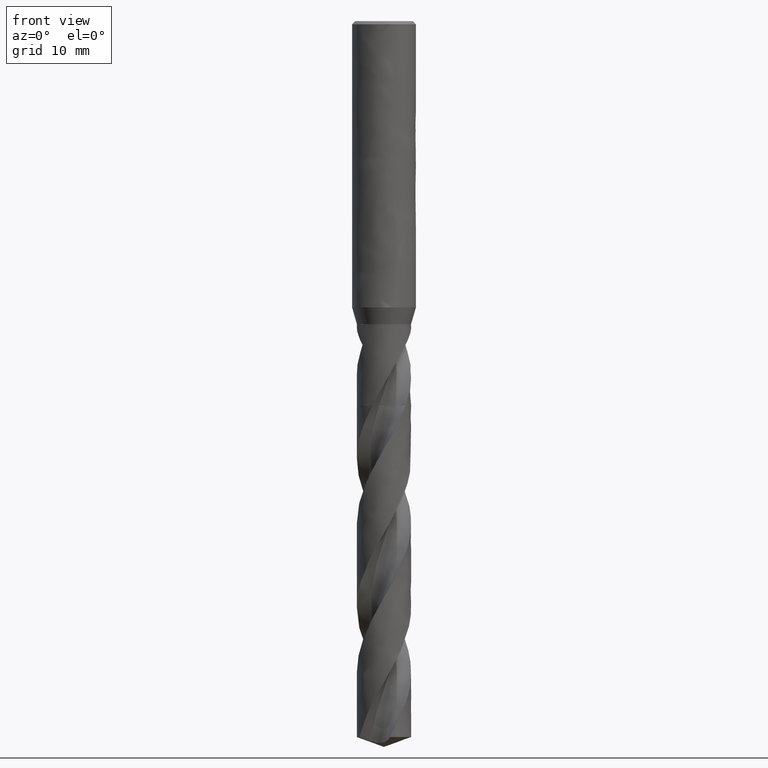
[diagram: clean part render]
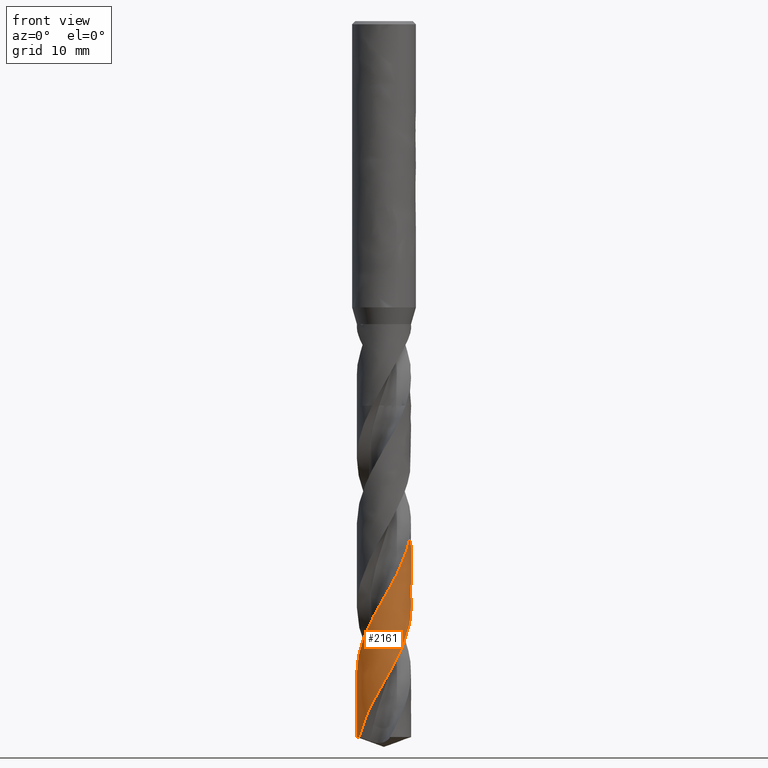
[diagram: same view with one face highlighted and labeled with its STEP entity id]
A machine part, front view. The second image highlights one B-rep face of the part: STEP entity #2161.
In plain terms, the highlighted face is a freeform B-spline surface patch.
Its self-contained STEP definition (entity closure, byte-faithful):
#1911 = EDGE_CURVE('', #1912, #1914, #1916, .T.);
#1912 = VERTEX_POINT('', #1913);
#1913 = CARTESIAN_POINT('', (-3.4, 3.15958874180017E-15, -48.2));
#1914 = VERTEX_POINT('', #1915);
#1915 = CARTESIAN_POINT('', (-2.70654430468537, 2.05781873030042, -48.2));
#1916 = CIRCLE('', #1917, 3.4);
#1917 = AXIS2_PLACEMENT_3D('', #1918, #1919, #1920);
#1918 = CARTESIAN_POINT('', (1.80721053810754E-31, 2.95139878594512E-15, -48.2));
#1919 = DIRECTION('', (3.74939945665464E-33, 6.12323399573677E-17, -1.));
#1920 = DIRECTION('', (-1., 6.12323399573677E-17, 0.));
#2107 = EDGE_CURVE('', #1912, #2108, #2110, .T.);
#2108 = VERTEX_POINT('', #2109);
#2109 = CARTESIAN_POINT('', (-3.4, 3.56620488106823E-15, -54.840545495259));
#2110 = LINE('', #2111, #2112);
#2111 = CARTESIAN_POINT('', (-3.4, 3.15958874180017E-15, -48.2));
#2112 = VECTOR('', #2113, 6.64054549525896);
#2113 = DIRECTION('', (0., 4.06616139268063E-16, -6.64054549525896));
#2161 = ADVANCED_FACE('', (#2162), #2589, .T.);
#2162 = FACE_OUTER_BOUND('', #2163, .T.);
#2163 = EDGE_LOOP('', (#2164, #2165, #2180, #2369, #2377, #2386, #2588));
#2164 = ORIENTED_EDGE('', *, *, #1911, .T.);
#2165 = ORIENTED_EDGE('', *, *, #2166, .T.);
#2166 = EDGE_CURVE('', #1914, #2167, #2169, .T.);
#2167 = VERTEX_POINT('', #2168);
#2168 = CARTESIAN_POINT('', (-2.07670650199845, 2.69207914158507, -49.7547794844051));
#2169 = B_SPLINE_CURVE_WITH_KNOTS('', 3, (#2170, #2171, #2172, #2173, #2174, #2175, #2176, #2177, #2178, #2179), .UNSPECIFIED., .F., .U., (4, 3, 3, 4), (4.06448001128583, 4.46939328573138, 5.13447242647181, 5.85900932511272), .UNSPECIFIED.);
#2170 = CARTESIAN_POINT('', (-2.70654430468537, 2.05781873030042, -48.2));
#2171 = CARTESIAN_POINT('', (-2.66573426832234, 2.11149409531968, -48.3169217330435));
#2172 = CARTESIAN_POINT('', (-2.62331715148642, 2.1639668815126, -48.433884989007));
#2173 = CARTESIAN_POINT('', (-2.57939230872634, 2.21511519286998, -48.5508108371741));
#2174 = CARTESIAN_POINT('', (-2.5072447686882, 2.29912744219539, -48.7428641669539));
#2175 = CARTESIAN_POINT('', (-2.43096554691488, 2.37963625278252, -48.9349739914612));
#2176 = CARTESIAN_POINT('', (-2.35096929213514, 2.45620507845693, -49.1270302884313));
#2177 = CARTESIAN_POINT('', (-2.26382141034099, 2.53961912061883, -49.3362563267283));
#2178 = CARTESIAN_POINT('', (-2.17221061408156, 2.61840596925262, -49.5455441645231));
#2179 = CARTESIAN_POINT('', (-2.07670650199842, 2.69207914158509, -49.7547794844052));
#2180 = ORIENTED_EDGE('', *, *, #2181, .T.);
#2181 = EDGE_CURVE('', #2167, #2182, #2184, .T.);
#2182 = VERTEX_POINT('', #2183);
#2183 = CARTESIAN_POINT('', (-3.4, 5.20795423810453E-15, -81.6523472029734));
#2184 = B_SPLINE_CURVE_WITH_KNOTS('', 3, (#2185, #2186, #2187, #2188, #2189, #2190, #2191, #2192, #2193, #2194, #2195, #2196, #2197, #2198, #2199, #2200, #2201, #2202, #2203, #2204, #2205, #2206, #2207, #2208, #2209, #2210, #2211, #2212, #2213, #2214, #2215, #2216, #2217, #2218, #2219, #2220, #2221, #2222, #2223, #2224, #2225, #2226, #2227, #2228, #2229, #2230, #2231, #2232, #2233, #2234, #2235, #2236, #2237, #2238, #2239, #2240, #2241, #2242, #2243, #2244, #2245, #2246, #2247, #2248, #2249, #2250, #2251, #2252, #2253, #2254, #2255, #2256, #2257, #2258, #2259, #2260, #2261, #2262, #2263, #2264, #2265, #2266, #2267, #2268, #2269, #2270, #2271, #2272, #2273, #2274, #2275, #2276, #2277, #2278, #2279, #2280, #2281, #2282, #2283, #2284, #2285, #2286, #2287, #2288, #2289, #2290, #2291, #2292, #2293, #2294, #2295, #2296, #2297, #2298, #2299, #2300, #2301, #2302, #2303, #2304, #2305, #2306, #2307, #2308, #2309, #2310, #2311, #2312, #2313, #2314, #2315, #2316, #2317, #2318, #2319, #2320, #2321, #2322, #2323, #2324, #2325, #2326, #2327, #2328, #2329, #2330, #2331, #2332, #2333, #2334, #2335, #2336, #2337, #2338, #2339, #2340, #2341, #2342, #2343, #2344, #2345, #2346, #2347, #2348, #2349, #2350, #2351, #2352, #2353, #2354, #2355, #2356, #2357, #2358, #2359, #2360, #2361, #2362, #2363, #2364, #2365, #2366, #2367, #2368), .UNSPECIFIED., .F., .U., (4, 3, 3, 3, 3, 3, 3, 3, 3, 3, 3, 3, 3, 3, 3, 3, 3, 3, 3, 3, 3, 3, 3, 3, 3, 3, 3, 3, 3, 3, 3, 3, 3, 3, 3, 3, 3, 3, 3, 3, 3, 3, 3, 3, 3, 3, 3, 3, 3, 3, 3, 3, 3, 3, 3, 3, 3, 3, 3, 3, 3, 4), (0., 0.664662705574033, 1.32912917288969, 1.99339885019059, 2.65746979782084, 3.32133917714323, 3.98500306582942, 4.42767326535415, 4.46659147409226, 4.50551635967254, 5.17212282784109, 5.83849504216515, 6.50464255546535, 7.17057340613799, 7.83629424632743, 8.50181047376977, 9.16712634360661, 9.83224505311552, 10.4971688032183, 11.1618988394438, 11.8264354741008, 12.4907780906116, 13.1549251302213, 13.8188740605795, 14.4826213249793, 15.1461622770032, 15.2045356421738, 15.8711376444633, 16.5375078921573, 17.2036559132106, 17.869589676359, 18.5353157723578, 19.2008395564398, 19.8661652590164, 20.5312960698044, 21.1962341991507, 21.8609809192166, 22.5255365867713, 23.1899006485605, 23.8540716295034, 24.5180471038934, 25.1818236710355, 25.8453968919637, 25.9329476650287, 25.9913296348911, 26.6579072634554, 27.3242564632162, 27.9903865325873, 28.6563052503871, 29.3220190515047, 29.9875331650631, 30.6528517218298, 31.3179778358576, 31.982913663985, 32.6476604457573, 33.312218525448, 33.9765873571079, 34.6407654928757, 35.3047505542685, 35.9685391915286, 36.6321270253332, 36.7489930226745), .UNSPECIFIED.);
#2185 = CARTESIAN_POINT('', (-2.07670650199845, 2.69207914158507, -49.7547794844051));
#2186 = CARTESIAN_POINT('', (-1.98909464724033, 2.75966411916534, -49.9467240410941));
#2187 = CARTESIAN_POINT('', (-1.89816148922431, 2.82298101932344, -50.1387312507681));
#2188 = CARTESIAN_POINT('', (-1.80439676530084, 2.88169261257545, -50.3306880284463));
#2189 = CARTESIAN_POINT('', (-1.7106597249317, 2.94038687153036, -50.5225881318694));
#2190 = CARTESIAN_POINT('', (-1.61403661911898, 2.99451375232613, -50.714551145815));
#2191 = CARTESIAN_POINT('', (-1.51504646655628, 3.04378616268873, -50.9064638284024));
#2192 = CARTESIAN_POINT('', (-1.41608563115937, 3.09304398041371, -51.0983196736601));
#2193 = CARTESIAN_POINT('', (-1.31469994102501, 3.13747970088758, -51.2902383615324));
#2194 = CARTESIAN_POINT('', (-1.21143276525714, 3.17685861430148, -51.4821066405582));
#2195 = CARTESIAN_POINT('', (-1.10819648394753, 3.21622574671925, -51.6739175183188));
#2196 = CARTESIAN_POINT('', (-1.00301865623766, 3.25056245974967, -51.8657912856637));
#2197 = CARTESIAN_POINT('', (-0.896461610702531, 3.27968848833799, -52.0576146007905));
#2198 = CARTESIAN_POINT('', (-0.789936908885242, 3.30880567617772, -52.2493796909622));
#2199 = CARTESIAN_POINT('', (-0.681971243112837, 3.33273248029514, -52.4412077230086));
#2200 = CARTESIAN_POINT('', (-0.573140394344877, 3.35134451949817, -52.6329852266077));
#2201 = CARTESIAN_POINT('', (-0.464343232505477, 3.36995079762847, -52.8247033684069));
#2202 = CARTESIAN_POINT('', (-0.354618106542504, 3.38325645761846, -53.0164844919234));
#2203 = CARTESIAN_POINT('', (-0.244548778767998, 3.39119387455267, -53.2082150382659));
#2204 = CARTESIAN_POINT('', (-0.17113147805581, 3.39648820802158, -53.3361011575069));
#2205 = CARTESIAN_POINT('', (-0.0975377041327914, 3.39939746023729, -53.4640070173651));
#2206 = CARTESIAN_POINT('', (-0.0239413196041546, 3.39991570678093, -53.5918987415309));
#2207 = CARTESIAN_POINT('', (-0.0174709507866222, 3.39996126943047, -53.6031425903879));
#2208 = CARTESIAN_POINT('', (-0.0110004792572525, 3.39998836120316, -53.6143864701579));
#2209 = CARTESIAN_POINT('', (-0.00453002436363119, 3.39999698218679, -53.6256303584915));
#2210 = CARTESIAN_POINT('', (0.00194154060693125, 3.40000560464944, -53.6368761758364));
#2211 = CARTESIAN_POINT('', (0.0084131020578022, 3.39999575000227, -53.648122024552));
#2212 = CARTESIAN_POINT('', (0.0148845406215845, 3.39996741902779, -53.659367882258));
#2213 = CARTESIAN_POINT('', (0.125710885790287, 3.39948223813242, -53.8519583388545));
#2214 = CARTESIAN_POINT('', (0.236534960221085, 3.39357172820682, -54.0446124834251));
#2215 = CARTESIAN_POINT('', (0.346762681355106, 3.38227078200718, -54.2372155370473));
#2216 = CARTESIAN_POINT('', (0.456951667090241, 3.37097380710127, -54.4297509075493));
#2217 = CARTESIAN_POINT('', (0.566609631660887, 3.35428351623566, -54.6223496363976));
#2218 = CARTESIAN_POINT('', (0.675148938717148, 3.33229259077762, -54.8148976073942));
#2219 = CARTESIAN_POINT('', (0.783651646268058, 3.31030908066998, -55.0073806511246));
#2220 = CARTESIAN_POINT('', (0.891101069808709, 3.28301540727713, -55.1999267194097));
#2221 = CARTESIAN_POINT('', (0.996921655927415, 3.25056106110067, -55.3924223124865));
#2222 = CARTESIAN_POINT('', (1.10270782419455, 3.21811727061012, -55.5848552969065));
#2223 = CARTESIAN_POINT('', (1.20692963568786, 3.18049671555123, -55.7773510880565));
#2224 = CARTESIAN_POINT('', (1.30902943694291, 3.13790406692386, -55.9697965694206));
#2225 = CARTESIAN_POINT('', (1.41109703961672, 3.09532485047599, -56.1621813604464));
#2226 = CARTESIAN_POINT('', (1.51110521500705, 3.04775114180278, -56.3546288496268));
#2227 = CARTESIAN_POINT('', (1.60851977281426, 2.99544055866006, -56.5470260944757));
#2228 = CARTESIAN_POINT('', (1.70590438975274, 2.94314605344592, -56.7393642050352));
#2229 = CARTESIAN_POINT('', (1.80075519839686, 2.88608634948238, -56.9317649865053));
#2230 = CARTESIAN_POINT('', (1.89256667120335, 2.82456924061888, -57.1241155166413));
#2231 = CARTESIAN_POINT('', (1.98435050362169, 2.76307065184568, -57.3164081385101));
#2232 = CARTESIAN_POINT('', (2.07315131171704, 2.69708087020521, -57.5087634586621));
#2233 = CARTESIAN_POINT('', (2.15849702648716, 2.626954622114, -57.7010684742978));
#2234 = CARTESIAN_POINT('', (2.24381744982823, 2.55684915530083, -57.8933165020851));
#2235 = CARTESIAN_POINT('', (2.32573501601239, 2.48256847392989, -58.0856272846934));
#2236 = CARTESIAN_POINT('', (2.40381547705492, 2.40451058477006, -58.2778876884368));
#2237 = CARTESIAN_POINT('', (2.48187305117502, 2.3264755759164, -58.4700917368657));
#2238 = CARTESIAN_POINT('', (2.55614123716375, 2.24462016152567, -58.6623586016468));
#2239 = CARTESIAN_POINT('', (2.62622751750303, 2.15938163053914, -58.8545750157748));
#2240 = CARTESIAN_POINT('', (2.69629337943327, 2.07416793230423, -59.0467354310204));
#2241 = CARTESIAN_POINT('', (2.76222020455321, 1.98552395845418, -59.2389587062707));
#2242 = CARTESIAN_POINT('', (2.82366065126221, 1.89392199588934, -59.4311314840639));
#2243 = CARTESIAN_POINT('', (2.88508322202441, 1.80234668469013, -59.6232483496601));
#2244 = CARTESIAN_POINT('', (2.94205719710296, 1.70776270810336, -59.8154280794717));
#2245 = CARTESIAN_POINT('', (2.99428338885606, 1.61067283680476, -60.007557311118));
#2246 = CARTESIAN_POINT('', (3.04649433264783, 1.51361131186942, -60.1996304487051));
#2247 = CARTESIAN_POINT('', (3.0939900158764, 1.41399008118131, -60.3917663950288));
#2248 = CARTESIAN_POINT('', (3.1365219183513, 1.31233770642388, -60.5838519083684));
#2249 = CARTESIAN_POINT('', (3.17904129979041, 1.21071525727403, -60.7758808733421));
#2250 = CARTESIAN_POINT('', (3.21662402481335, 1.10700503335396, -60.9679725129555));
#2251 = CARTESIAN_POINT('', (3.24907429741722, 1.0017565621761, -61.1600138691283));
#2252 = CARTESIAN_POINT('', (3.28151489038866, 0.896539485696418, -61.3519979410447));
#2253 = CARTESIAN_POINT('', (3.30884462492354, 0.789724956823522, -61.5440444572751));
#2254 = CARTESIAN_POINT('', (3.33092204056549, 0.681878551998201, -61.7360409411223));
#2255 = CARTESIAN_POINT('', (3.35299275047605, 0.574064904132928, -61.927979108504));
#2256 = CARTESIAN_POINT('', (3.36982705092419, 0.465157794375057, -62.1199793841114));
#2257 = CARTESIAN_POINT('', (3.38133900033719, 0.355733839828294, -62.3119299824221));
#2258 = CARTESIAN_POINT('', (3.39284737149419, 0.246343897498627, -62.5038209167823));
#2259 = CARTESIAN_POINT('', (3.39904341329351, 0.136373469575013, -62.6957735940924));
#2260 = CARTESIAN_POINT('', (3.39989746744948, 0.0264047501649714, -62.8876769138188));
#2261 = CARTESIAN_POINT('', (3.39997260074001, 0.0167305255434322, -62.9045591311494));
#2262 = CARTESIAN_POINT('', (3.40000644198631, 0.00705603893328164, -62.9214414326125));
#2263 = CARTESIAN_POINT('', (3.39999899182512, -0.00261831780677393, -62.9383237397771));
#2264 = CARTESIAN_POINT('', (3.39991391377027, -0.113095854178605, -63.131113374678));
#2265 = CARTESIAN_POINT('', (3.39443773474542, -0.223591010036821, -63.3239655502825));
#2266 = CARTESIAN_POINT('', (3.38360286691342, -0.333514076187647, -63.5167676814256));
#2267 = CARTESIAN_POINT('', (3.37277176599241, -0.443398925867995, -63.7095027818971));
#2268 = CARTESIAN_POINT('', (3.35657926225638, -0.55277739826619, -63.9023001662072));
#2269 = CARTESIAN_POINT('', (3.33511490104433, -0.661066257522128, -64.0950477110657));
#2270 = CARTESIAN_POINT('', (3.31365769794431, -0.769319003717058, -64.2877309768849));
#2271 = CARTESIAN_POINT('', (3.28691937967178, -0.876547363656058, -64.4804763919803));
#2272 = CARTESIAN_POINT('', (3.25504555536207, -0.982180448043342, -64.6731720596977));
#2273 = CARTESIAN_POINT('', (3.22318198285616, -1.08777955691373, -64.8658057493431));
#2274 = CARTESIAN_POINT('', (3.18616729900695, -1.19184715314529, -65.0585015478639));
#2275 = CARTESIAN_POINT('', (3.14420150567031, -1.29383031798644, -65.2511476059914));
#2276 = CARTESIAN_POINT('', (3.10224879909571, -1.39578168003529, -65.4437335886879));
#2277 = CARTESIAN_POINT('', (3.05532334595114, -1.49571006777665, -65.636381706676));
#2278 = CARTESIAN_POINT('', (3.0036773237077, -1.59308585300486, -65.828980033204));
#2279 = CARTESIAN_POINT('', (2.95204699651637, -1.69043204606013, -66.0215198297496));
#2280 = CARTESIAN_POINT('', (2.89566882590617, -1.78528408814774, -66.2141218283221));
#2281 = CARTESIAN_POINT('', (2.83484446063175, -1.87714061381281, -66.4066739524957));
#2282 = CARTESIAN_POINT('', (2.77403819866501, -1.96896979999081, -66.5991687669));
#2283 = CARTESIAN_POINT('', (2.70875326464868, -2.05785835497363, -66.791725864777));
#2284 = CARTESIAN_POINT('', (2.63933764711814, -2.14333776724642, -66.9842329987262));
#2285 = CARTESIAN_POINT('', (2.56994236328853, -2.22879214030085, -67.1766837421595));
#2286 = CARTESIAN_POINT('', (2.49637915377616, -2.31088825650115, -67.3691968405353));
#2287 = CARTESIAN_POINT('', (2.41903884780751, -2.3891946452305, -67.5616599032169));
#2288 = CARTESIAN_POINT('', (2.34172094651687, -2.46747834941776, -67.7540672113615));
#2289 = CARTESIAN_POINT('', (2.26058435359911, -2.5420188891773, -67.9465369122028));
#2290 = CARTESIAN_POINT('', (2.17605892988605, -2.61242560346954, -68.1389565467452));
#2291 = CARTESIAN_POINT('', (2.09155783768566, -2.68281205046483, -68.3313207913165));
#2292 = CARTESIAN_POINT('', (2.00362232721517, -2.74910667461949, -68.5237474098512));
#2293 = CARTESIAN_POINT('', (1.91271722613122, -2.81096296895937, -68.7161239950705));
#2294 = CARTESIAN_POINT('', (1.8218382517619, -2.87280148539976, -68.9084452900136));
#2295 = CARTESIAN_POINT('', (1.72794039891952, -2.93023893444039, -69.1008288619104));
#2296 = CARTESIAN_POINT('', (1.63151919157141, -2.98297588450429, -69.2931625185024));
#2297 = CARTESIAN_POINT('', (1.53512578454184, -3.0356976293654, -69.4854407211433));
#2298 = CARTESIAN_POINT('', (1.43615624766711, -3.08375124469308, -69.6777810046573));
#2299 = CARTESIAN_POINT('', (1.33513236980607, -3.12688687916529, -69.8700715963444));
#2300 = CARTESIAN_POINT('', (1.23413785201573, -3.17000997734107, -70.0623063035665));
#2301 = CARTESIAN_POINT('', (1.13103286182832, -3.20824241345102, -70.2546027767196));
#2302 = CARTESIAN_POINT('', (1.0263608998404, -3.24138601577764, -70.4468499064229));
#2303 = CARTESIAN_POINT('', (0.921719749277653, -3.27451986189443, -70.6390404459187));
#2304 = CARTESIAN_POINT('', (0.815452290470956, -3.3025869275222, -70.8312923547396));
#2305 = CARTESIAN_POINT('', (0.708118813869284, -3.32544248866891, -71.0234953041096));
#2306 = CARTESIAN_POINT('', (0.600817491175791, -3.3482912029712, -71.2156406752088));
#2307 = CARTESIAN_POINT('', (0.49238818013508, -3.36594485554387, -71.4078470903655));
#2308 = CARTESIAN_POINT('', (0.383402377137043, -3.37831357591416, -71.60000481395));
#2309 = CARTESIAN_POINT('', (0.274449961654481, -3.39067850715933, -71.7921036705188));
#2310 = CARTESIAN_POINT('', (0.164877459601534, -3.39776900563465, -71.9842633984359));
#2311 = CARTESIAN_POINT('', (0.0552616884726825, -3.39955087412848, -72.176374560849));
#2312 = CARTESIAN_POINT('', (0.0407991616560998, -3.39978597096364, -72.2017213956115));
#2313 = CARTESIAN_POINT('', (0.026335254130114, -3.39992877330793, -72.2270684666549));
#2314 = CARTESIAN_POINT('', (0.0118712772620644, -3.39997927534509, -72.2524155139706));
#2315 = CARTESIAN_POINT('', (0.00222618296945677, -3.40001295189995, -72.2693178267736));
#2316 = CARTESIAN_POINT('', (-0.00741899588045784, -3.40000558594778, -72.2862202229248));
#2317 = CARTESIAN_POINT('', (-0.0170638718718545, -3.39995717977105, -72.3031226245312));
#2318 = CARTESIAN_POINT('', (-0.127184489269404, -3.39940450101471, -72.4961062255714));
#2319 = CARTESIAN_POINT('', (-0.237299501890257, -3.39349539276194, -72.6891516661982));
#2320 = CARTESIAN_POINT('', (-0.346825289970141, -3.38226436255907, -72.8821477589211));
#2321 = CARTESIAN_POINT('', (-0.456313544770123, -3.3710371811064, -73.0750777140111));
#2322 = CARTESIAN_POINT('', (-0.56527741365712, -3.35448511287468, -73.2680692303429));
#2323 = CARTESIAN_POINT('', (-0.673139795521811, -3.33269902866835, -73.4610116264796));
#2324 = CARTESIAN_POINT('', (-0.780966706606626, -3.3109201088634, -73.6538905730879));
#2325 = CARTESIAN_POINT('', (-0.887756529675193, -3.28389776401626, -73.8468309379652));
#2326 = CARTESIAN_POINT('', (-0.992944511332081, -3.25177815931782, -74.0397222847272));
#2327 = CARTESIAN_POINT('', (-1.09809911865831, -3.21966874561545, -74.2325524303949));
#2328 = CARTESIAN_POINT('', (-1.20171483341204, -3.18244641663211, -74.4254439572529));
#2329 = CARTESIAN_POINT('', (-1.30324482368754, -3.14031096064258, -74.6182864717348));
#2330 = CARTESIAN_POINT('', (-1.40474357112786, -3.0981884705866, -74.8110696446675));
#2331 = CARTESIAN_POINT('', (-1.50421722663374, -3.05113127779308, -75.0039142385989));
#2332 = CARTESIAN_POINT('', (-1.60114214209874, -2.99939057823344, -75.1967097583541));
#2333 = CARTESIAN_POINT('', (-1.6980379839592, -2.94766539881773, -75.3894474471515));
#2334 = CARTESIAN_POINT('', (-1.79244268798364, -2.89122962665708, -75.5822466451634));
#2335 = CARTESIAN_POINT('', (-1.88386069620003, -2.83038316793199, -75.7749966679202));
#2336 = CARTESIAN_POINT('', (-1.97525184185705, -2.76955458852458, -75.967690052395));
#2337 = CARTESIAN_POINT('', (-2.06371029962134, -2.70428317763602, -76.1604450548079));
#2338 = CARTESIAN_POINT('', (-2.14877311899824, -2.63491443562605, -76.3531507692773));
#2339 = CARTESIAN_POINT('', (-2.23381133403819, -2.56556575845657, -76.5458007438082));
#2340 = CARTESIAN_POINT('', (-2.3155038995066, -2.49208299936123, -76.7385124382276));
#2341 = CARTESIAN_POINT('', (-2.39342457869924, -2.41485378151108, -76.9311747474463));
#2342 = CARTESIAN_POINT('', (-2.47132296556823, -2.33764665816442, -77.1237819379136));
#2343 = CARTESIAN_POINT('', (-2.54549513128178, -2.25665213945219, -77.3164509168198));
#2344 = CARTESIAN_POINT('', (-2.61555523636116, -2.17229620575641, -77.5090704550773));
#2345 = CARTESIAN_POINT('', (-2.68559542281539, -2.08796425509948, -77.7016352301229));
#2346 = CARTESIAN_POINT('', (-2.75156468000136, -2.00022612560461, -77.8942618028115));
#2347 = CARTESIAN_POINT('', (-2.8131208235309, -1.90954215251112, -78.0868389469025));
#2348 = CARTESIAN_POINT('', (-2.87465949307977, -1.81888392193336, -78.2793614240001));
#2349 = CARTESIAN_POINT('', (-2.93182150005648, -1.72523153240763, -78.4719456233566));
#2350 = CARTESIAN_POINT('', (-2.98431115268691, -1.62907548749237, -78.6644804986445));
#2351 = CARTESIAN_POINT('', (-3.03678585769471, -1.53294682519828, -78.8569605452468));
#2352 = CARTESIAN_POINT('', (-3.08461986139926, -1.43426282038027, -79.0495021296164));
#2353 = CARTESIAN_POINT('', (-3.12756639357987, -1.33353982083393, -79.2419946111739));
#2354 = CARTESIAN_POINT('', (-3.17050059868119, -1.2328457321295, -79.4344318410042));
#2355 = CARTESIAN_POINT('', (-3.20857406141651, -1.13005766881335, -79.6269302912208));
#2356 = CARTESIAN_POINT('', (-3.24159097025768, -1.02571340126954, -79.8193800001158));
#2357 = CARTESIAN_POINT('', (-3.27459828119326, -0.921399466257249, -80.0117737645205));
#2358 = CARTESIAN_POINT('', (-3.30257065580163, -0.815471113852259, -80.2042283207478));
#2359 = CARTESIAN_POINT('', (-3.32536495545271, -0.708482824807399, -80.396634573519));
#2360 = CARTESIAN_POINT('', (-3.34815251195429, -0.60152618569431, -80.5889839074925));
#2361 = CARTESIAN_POINT('', (-3.36577817075002, -0.493448597563809, -80.7813936474321));
#2362 = CARTESIAN_POINT('', (-3.37815286563757, -0.384815821380769, -80.973755412154));
#2363 = CARTESIAN_POINT('', (-3.39052381704208, -0.276215907822393, -81.1660589852998));
#2364 = CARTESIAN_POINT('', (-3.39765417364119, -0.166998009866585, -81.3584227508713));
#2365 = CARTESIAN_POINT('', (-3.39950979781438, -0.057733305505673, -81.5507387069124));
#2366 = CARTESIAN_POINT('', (-3.39983659610489, -0.0384904442010528, -81.5846079173808));
#2367 = CARTESIAN_POINT('', (-3.4, -0.0192449829701771, -81.6184776213914));
#2368 = CARTESIAN_POINT('', (-3.4, 4.87754193197368E-15, -81.6523472029734));
#2369 = ORIENTED_EDGE('', *, *, #2370, .T.);
#2370 = EDGE_CURVE('', #2182, #2371, #2373, .T.);
#2371 = VERTEX_POINT('', #2372);
#2372 = CARTESIAN_POINT('', (-3.4, 5.70455794497107E-15, -89.7625012034949));
#2373 = LINE('', #2374, #2375);
#2374 = CARTESIAN_POINT('', (-3.4, 5.20795423810453E-15, -81.6523472029734));
#2375 = VECTOR('', #2376, 8.11015400052153);
#2376 = DIRECTION('', (0., 4.9660370686654E-16, -8.11015400052153));
#2377 = ORIENTED_EDGE('', *, *, #2378, .F.);
#2378 = EDGE_CURVE('', #2379, #2371, #2381, .T.);
#2379 = VERTEX_POINT('', #2380);
#2380 = CARTESIAN_POINT('', (-3.10641837743046, -1.38208714065442, -89.7625012034949));
#2381 = CIRCLE('', #2382, 3.39999999999999);
#2382 = AXIS2_PLACEMENT_3D('', #2383, #2384, #2385);
#2383 = CARTESIAN_POINT('', (3.36555473240346E-31, 5.49636798911602E-15, -89.7625012034949));
#2384 = DIRECTION('', (3.74939945665464E-33, 6.12323399573677E-17, -1.));
#2385 = DIRECTION('', (-1., 6.12323399573677E-17, 0.));
#2386 = ORIENTED_EDGE('', *, *, #2387, .T.);
#2387 = EDGE_CURVE('', #2379, #2108, #2388, .T.);
#2388 = B_SPLINE_CURVE_WITH_KNOTS('', 3, (#2389, #2390, #2391, #2392, #2393, #2394, #2395, #2396, #2397, #2398, #2399, #2400, #2401, #2402, #2403, #2404, #2405, #2406, #2407, #2408, #2409, #2410, #2411, #2412, #2413, #2414, #2415, #2416, #2417, #2418, #2419, #2420, #2421, #2422, #2423, #2424, #2425, #2426, #2427, #2428, #2429, #2430, #2431, #2432, #2433, #2434, #2435, #2436, #2437, #2438, #2439, #2440, #2441, #2442, #2443, #2444, #2445, #2446, #2447, #2448, #2449, #2450, #2451, #2452, #2453, #2454, #2455, #2456, #2457, #2458, #2459, #2460, #2461, #2462, #2463, #2464, #2465, #2466, #2467, #2468, #2469, #2470, #2471, #2472, #2473, #2474, #2475, #2476, #2477, #2478, #2479, #2480, #2481, #2482, #2483, #2484, #2485, #2486, #2487, #2488, #2489, #2490, #2491, #2492, #2493, #2494, #2495, #2496, #2497, #2498, #2499, #2500, #2501, #2502, #2503, #2504, #2505, #2506, #2507, #2508, #2509, #2510, #2511, #2512, #2513, #2514, #2515, #2516, #2517, #2518, #2519, #2520, #2521, #2522, #2523, #2524, #2525, #2526, #2527, #2528, #2529, #2530, #2531, #2532, #2533, #2534, #2535, #2536, #2537, #2538, #2539, #2540, #2541, #2542, #2543, #2544, #2545, #2546, #2547, #2548, #2549, #2550, #2551, #2552, #2553, #2554, #2555, #2556, #2557, #2558, #2559, #2560, #2561, #2562, #2563, #2564, #2565, #2566, #2567, #2568, #2569, #2570, #2571, #2572, #2573, #2574, #2575, #2576, #2577, #2578, #2579, #2580, #2581, #2582, #2583, #2584, #2585, #2586, #2587), .UNSPECIFIED., .F., .U., (4, 3, 3, 3, 3, 3, 3, 3, 3, 3, 3, 3, 3, 3, 3, 3, 3, 3, 3, 3, 3, 3, 3, 3, 3, 3, 3, 3, 3, 3, 3, 3, 3, 3, 3, 3, 3, 3, 3, 3, 3, 3, 3, 3, 3, 3, 3, 3, 3, 3, 3, 3, 3, 3, 3, 3, 3, 3, 3, 3, 3, 3, 3, 3, 3, 3, 4), (0., 0.665658684143706, 1.33112080664724, 1.99638968701816, 2.66146776314738, 3.32635658042333, 3.99105676015281, 4.65556804558426, 5.3198892849395, 5.98401841330459, 6.64795241296074, 7.31168725522058, 7.75439158018634, 7.8856975406057, 7.94407468603058, 8.61064976076176, 9.27699881915352, 9.94313059406263, 10.6090523876881, 11.2747702067578, 11.9402888753746, 12.6056121356499, 13.2707427233142, 13.9356824216931, 14.6004320964094, 15.2649917123102, 15.9293603333777, 16.5935361056868, 17.2575162227936, 17.9212968722078, 18.5848731614618, 18.6724239627892, 18.7308027443274, 19.3973840671119, 20.06373782596, 20.7298728324584, 21.395796433367, 22.0615146678949, 22.7270323826502, 23.3923533333696, 24.057480261298, 24.7224149476488, 25.3871582485295, 26.051710111847, 26.7160695769481, 27.380234757049, 28.044202803811, 28.7079698526785, 29.3715309471411, 29.459081461662, 29.5174741697898, 30.1840551037833, 30.8504072042736, 31.5165393164535, 32.1824587967146, 32.8481716790447, 33.5136827983592, 34.1789958924928, 34.8441136786269, 35.5090379075943, 36.1737693984404, 36.8383080547462, 37.5026528634449, 38.1668018761567, 38.830752172347, 39.4944998028693, 40.2097556515464), .UNSPECIFIED.);
#2389 = CARTESIAN_POINT('', (-3.10641837743046, -1.38208714065442, -89.7625012034949));
#2390 = CARTESIAN_POINT('', (-3.06184587137246, -1.48226957334902, -89.5696015661691));
#2391 = CARTESIAN_POINT('', (-3.01240621582055, -1.58032740417758, -89.3766503032227));
#2392 = CARTESIAN_POINT('', (-2.95835715129782, -1.67574549540348, -89.1837576266164));
#2393 = CARTESIAN_POINT('', (-2.90432404686548, -1.77113541072337, -88.9909219090821));
#2394 = CARTESIAN_POINT('', (-2.84565354606718, -1.8639413737615, -88.7980345843537));
#2395 = CARTESIAN_POINT('', (-2.78265161740104, -1.95367601617447, -88.6052059630038));
#2396 = CARTESIAN_POINT('', (-2.71966798373119, -2.04338460073518, -88.4124333367478));
#2397 = CARTESIAN_POINT('', (-2.65232006248501, -2.13007407568269, -88.2196088719757));
#2398 = CARTESIAN_POINT('', (-2.58095880687818, -2.21328977705088, -88.0268432839373));
#2399 = CARTESIAN_POINT('', (-2.50961801822941, -2.29648161151461, -87.8341329825551));
#2400 = CARTESIAN_POINT('', (-2.43422647377551, -2.3762480010103, -87.6413707543139));
#2401 = CARTESIAN_POINT('', (-2.35517697513864, -2.45217075583589, -87.4486674544712));
#2402 = CARTESIAN_POINT('', (-2.27614997133058, -2.52807190559881, -87.2560189915069));
#2403 = CARTESIAN_POINT('', (-2.19342322425954, -2.60017374395295, -87.063318596086));
#2404 = CARTESIAN_POINT('', (-2.10742782456865, -2.66809819238982, -86.8706771086403));
#2405 = CARTESIAN_POINT('', (-2.02145682288353, -2.73600336978323, -86.6780902760732));
#2406 = CARTESIAN_POINT('', (-1.93217124924991, -2.79977125253461, -86.4854515747478));
#2407 = CARTESIAN_POINT('', (-1.84003660461929, -2.85906720691576, -86.2928716916379));
#2408 = CARTESIAN_POINT('', (-1.74792814278439, -2.91834631059035, -86.1003465358214));
#2409 = CARTESIAN_POINT('', (-1.65292081235727, -2.97318910223052, -85.9077696300079));
#2410 = CARTESIAN_POINT('', (-1.55551031352072, -3.02330740490124, -85.7152514050264));
#2411 = CARTESIAN_POINT('', (-1.45812767347828, -3.07341137405049, -85.5227882390545));
#2412 = CARTESIAN_POINT('', (-1.35828850334831, -3.11882169907105, -85.3302734791632));
#2413 = CARTESIAN_POINT('', (-1.25651418325136, -3.15929930637921, -85.1378172305313));
#2414 = CARTESIAN_POINT('', (-1.15476929464667, -3.19976520821605, -84.9454166371431));
#2415 = CARTESIAN_POINT('', (-1.05103271642995, -3.23532415680738, -84.7529646239647));
#2416 = CARTESIAN_POINT('', (-0.945846695198553, -3.26578842382389, -84.560570940915));
#2417 = CARTESIAN_POINT('', (-0.84069157881931, -3.29624374009146, -84.3682337853226));
#2418 = CARTESIAN_POINT('', (-0.734027781434464, -3.32162475288345, -84.1758453815945));
#2419 = CARTESIAN_POINT('', (-0.626413337630431, -3.34179687151078, -83.9835151361158));
#2420 = CARTESIAN_POINT('', (-0.518831174463396, -3.36196293919535, -83.791242583105));
#2421 = CARTESIAN_POINT('', (-0.410237011879745, -3.37693483001121, -83.5989189285722));
#2422 = CARTESIAN_POINT('', (-0.301199360641982, -3.38663239002259, -83.4066532927939));
#2423 = CARTESIAN_POINT('', (-0.228472366798002, -3.3931005629816, -83.2784140877952));
#2424 = CARTESIAN_POINT('', (-0.155524721809614, -3.3972259183913, -83.1501602917478));
#2425 = CARTESIAN_POINT('', (-0.082526513729763, -3.3989982898689, -83.021924310408));
#2426 = CARTESIAN_POINT('', (-0.0608752686881462, -3.39952397467919, -82.9838895595809));
#2427 = CARTESIAN_POINT('', (-0.0392185378457906, -3.39984278715044, -82.9458545093792));
#2428 = CARTESIAN_POINT('', (-0.0175607785796062, -3.39995464955867, -82.9078199990337));
#2429 = CARTESIAN_POINT('', (-0.00793198367782913, -3.40000438232063, -82.8909102857617));
#2430 = CARTESIAN_POINT('', (0.00169708572229088, -3.40001321140795, -82.8740005590203));
#2431 = CARTESIAN_POINT('', (0.0113260430764361, -3.39998113535181, -82.857090895542));
#2432 = CARTESIAN_POINT('', (0.121273573419161, -3.3996148773006, -82.6640091661307));
#2433 = CARTESIAN_POINT('', (0.231241547402821, -3.3939090529141, -82.4708756370917));
#2434 = CARTESIAN_POINT('', (0.340648757853118, -3.38289202070855, -82.277800949189));
#2435 = CARTESIAN_POINT('', (0.450018871480943, -3.37187872406015, -82.0847917273317));
#2436 = CARTESIAN_POINT('', (0.558891998536599, -3.35555145656979, -81.89173057399));
#2437 = CARTESIAN_POINT('', (0.666693413201661, -3.33399458499765, -81.6987284225404));
#2438 = CARTESIAN_POINT('', (0.774459675919678, -3.31244474270254, -81.5057892053429));
#2439 = CARTESIAN_POINT('', (0.881216656263537, -3.28565638639554, -81.3127978605745));
#2440 = CARTESIAN_POINT('', (0.986401595141154, -3.25376887518198, -81.1198656966467));
#2441 = CARTESIAN_POINT('', (1.09155337711302, -3.2218914157041, -80.9269943497298));
#2442 = CARTESIAN_POINT('', (1.19519368717038, -3.18489997148421, -80.7340707315283));
#2443 = CARTESIAN_POINT('', (1.29677674760943, -3.14298744300061, -80.5412064063562));
#2444 = CARTESIAN_POINT('', (1.3983286927436, -3.10108775249508, -80.3484011563118));
#2445 = CARTESIAN_POINT('', (1.49788179548693, -3.05424642179737, -80.1555435703979));
#2446 = CARTESIAN_POINT('', (1.5949120615288, -3.00270803042686, -79.962745313776));
#2447 = CARTESIAN_POINT('', (1.69191330082558, -2.95118505684101, -79.7700047330327));
#2448 = CARTESIAN_POINT('', (1.78644765284868, -2.89493891595674, -79.5772118209947));
#2449 = CARTESIAN_POINT('', (1.87801755724294, -2.8342635824297, -79.3844782089596));
#2450 = CARTESIAN_POINT('', (1.96956057505386, -2.77360606428012, -79.1918011870056));
#2451 = CARTESIAN_POINT('', (2.05819230775346, -2.70848787339396, -78.9990718960932));
#2452 = CARTESIAN_POINT('', (2.14344609295274, -2.63924967492763, -78.8064018221601));
#2453 = CARTESIAN_POINT('', (2.22867518929717, -2.57003152732272, -78.613787544031));
#2454 = CARTESIAN_POINT('', (2.3105763476472, -2.4966567170502, -78.4211211041807));
#2455 = CARTESIAN_POINT('', (2.38871804285259, -2.41950947750788, -78.2285137578459));
#2456 = CARTESIAN_POINT('', (2.46683731176663, -2.34238437885291, -78.0359616888947));
#2457 = CARTESIAN_POINT('', (2.5412435729826, -2.26144526107738, -77.843357595999));
#2458 = CARTESIAN_POINT('', (2.61154441183073, -2.17711639216549, -77.650812447525));
#2459 = CARTESIAN_POINT('', (2.68182516040162, -2.09281162240211, -77.4583223237915));
#2460 = CARTESIAN_POINT('', (2.74804295972696, -2.00507087935349, -77.2657803285226));
#2461 = CARTESIAN_POINT('', (2.80984816857198, -1.9143545307943, -77.0732971193245));
#2462 = CARTESIAN_POINT('', (2.87163570666781, -1.82366411897853, -76.8808689430691));
#2463 = CARTESIAN_POINT('', (2.92904870309916, -1.72994763115985, -76.6883890448178));
#2464 = CARTESIAN_POINT('', (2.98178359583764, -1.63369721417205, -76.4959677830149));
#2465 = CARTESIAN_POINT('', (3.03450333253622, -1.53747445961201, -76.3036018231985));
#2466 = CARTESIAN_POINT('', (3.08257815349665, -1.43866353929492, -76.1111842689008));
#2467 = CARTESIAN_POINT('', (3.12575347546236, -1.33778369351514, -75.9188252298166));
#2468 = CARTESIAN_POINT('', (3.16891626476628, -1.23693313050456, -75.7265220275083));
#2469 = CARTESIAN_POINT('', (3.20720747548616, -1.13395623301781, -75.534167315336));
#2470 = CARTESIAN_POINT('', (3.24042394604964, -1.02939431214097, -75.3418710469273));
#2471 = CARTESIAN_POINT('', (3.27363063159003, -0.924863193477412, -75.1496314258203));
#2472 = CARTESIAN_POINT('', (3.30178488220759, -0.818687183345131, -74.9573403139061));
#2473 = CARTESIAN_POINT('', (3.32473689328953, -0.7114243391956, -74.7651076473032));
#2474 = CARTESIAN_POINT('', (3.34768200930855, -0.604193718107376, -74.5729327297284));
#2475 = CARTESIAN_POINT('', (3.36544132039445, -0.495814771203955, -74.3807062503063));
#2476 = CARTESIAN_POINT('', (3.37791975607527, -0.386856719622987, -74.1885383158542));
#2477 = CARTESIAN_POINT('', (3.39039434998227, -0.277932213287567, -73.9964295447264));
#2478 = CARTESIAN_POINT('', (3.39759850635639, -0.168366383388157, -73.8042690560844));
#2479 = CARTESIAN_POINT('', (3.39949265603006, -0.0587339901594889, -73.6121672755883));
#2480 = CARTESIAN_POINT('', (3.39974256598684, -0.0442693324644485, -73.586821787675));
#2481 = CARTESIAN_POINT('', (3.39990015744632, -0.0298029132031645, -73.561476226625));
#2482 = CARTESIAN_POINT('', (3.39996541238453, -0.0153360551929733, -73.5361308464564));
#2483 = CARTESIAN_POINT('', (3.40000892430817, -0.00568956960383953, -73.5192305738212));
#2484 = CARTESIAN_POINT('', (3.40001138220744, 0.003957165919771, -73.5023302882807));
#2485 = CARTESIAN_POINT('', (3.3999727848417, 0.0136037618241424, -73.485430066674));
#2486 = CARTESIAN_POINT('', (3.39953207192451, 0.123750642058257, -73.2924597480563));
#2487 = CARTESIAN_POINT('', (3.39373234721959, 0.233914497419123, -73.0994372104708));
#2488 = CARTESIAN_POINT('', (3.38260258991424, 0.343510871306767, -72.9064739065667));
#2489 = CARTESIAN_POINT('', (3.37147663219237, 0.453069830131304, -72.7135764783293));
#2490 = CARTESIAN_POINT('', (3.35501780356632, 0.562125614203807, -72.5206267469346));
#2491 = CARTESIAN_POINT('', (3.3333115296504, 0.670100176316839, -72.3277363588284));
#2492 = CARTESIAN_POINT('', (3.31161238152669, 0.778039292259034, -72.1349092932819));
#2493 = CARTESIAN_POINT('', (3.28465670709823, 0.884960301072809, -71.9420297754573));
#2494 = CARTESIAN_POINT('', (3.25258537103434, 0.990297129216012, -71.7492097427149));
#2495 = CARTESIAN_POINT('', (3.22052421317704, 1.09560052750783, -71.556450903623));
#2496 = CARTESIAN_POINT('', (3.1833322890756, 1.1993810747446, -71.3636394904779));
#2497 = CARTESIAN_POINT('', (3.14120443168119, 1.30108981949229, -71.1708876592123));
#2498 = CARTESIAN_POINT('', (3.09908956623599, 1.40276719794396, -70.9781952713212));
#2499 = CARTESIAN_POINT('', (3.05201784272846, 1.50243193878879, -70.7854502498822));
#2500 = CARTESIAN_POINT('', (3.00023616152611, 1.59955711841469, -70.5927648469428));
#2501 = CARTESIAN_POINT('', (2.94847007738931, 1.69665304314276, -70.4001374824214));
#2502 = CARTESIAN_POINT('', (2.8919674879089, 1.7912660545073, -70.207457480712));
#2503 = CARTESIAN_POINT('', (2.8310250241108, 1.88289599098263, -70.0148370807647));
#2504 = CARTESIAN_POINT('', (2.77010057829307, 1.9744988365546, -69.8222736301163));
#2505 = CARTESIAN_POINT('', (2.70470429393112, 2.06317236974402, -69.6296575866741));
#2506 = CARTESIAN_POINT('', (2.63517976678634, 2.14844771793961, -69.4371010831327));
#2507 = CARTESIAN_POINT('', (2.56567551458223, 2.23369819789522, -69.2446007334673));
#2508 = CARTESIAN_POINT('', (2.49200586806058, 2.31560098205931, -69.052047874171));
#2509 = CARTESIAN_POINT('', (2.41455820144141, 2.39372276837817, -68.8595544574888));
#2510 = CARTESIAN_POINT('', (2.33713291951452, 2.47182197516398, -68.667116677162));
#2511 = CARTESIAN_POINT('', (2.25588754628917, 2.54618699297454, -68.4746264983691));
#2512 = CARTESIAN_POINT('', (2.17124963931056, 2.61642408714524, -68.2821956406984));
#2513 = CARTESIAN_POINT('', (2.08663609331949, 2.68664096525629, -68.0898201696257));
#2514 = CARTESIAN_POINT('', (1.99858334469168, 2.75277262729394, -67.8973924269258));
#2515 = CARTESIAN_POINT('', (1.90755514516811, 2.81446857650653, -67.705023872454));
#2516 = CARTESIAN_POINT('', (1.816553160601, 2.87614675807535, -67.512710717664));
#2517 = CARTESIAN_POINT('', (1.72252485044662, 2.93342740810732, -67.3203454198026));
#2518 = CARTESIAN_POINT('', (1.62596579646622, 2.98600656876739, -67.1280391803282));
#2519 = CARTESIAN_POINT('', (1.52943469785062, 3.0385705069335, -66.9357886165347));
#2520 = CARTESIAN_POINT('', (1.43031825075127, 3.08646619657545, -66.7434860242835));
#2521 = CARTESIAN_POINT('', (1.32913915151815, 3.12943910563885, -66.5512423798127));
#2522 = CARTESIAN_POINT('', (1.22798964105789, 3.17239944772296, -66.3590549549919));
#2523 = CARTESIAN_POINT('', (1.12471971516301, 3.21046492585317, -66.1668155849429));
#2524 = CARTESIAN_POINT('', (1.01987414746192, 3.24343286092668, -65.9746350892935));
#2525 = CARTESIAN_POINT('', (0.91505969936398, 3.27639101066468, -65.7825116354523));
#2526 = CARTESIAN_POINT('', (0.808609362175388, 3.30427388033779, -65.5903362689149));
#2527 = CARTESIAN_POINT('', (0.70108466329252, 3.32693256542667, -65.3982197605136));
#2528 = CARTESIAN_POINT('', (0.593592514527376, 3.34958439122764, -65.2061614100521));
#2529 = CARTESIAN_POINT('', (0.484964053922129, 3.36702839465646, -65.0140511074446));
#2530 = CARTESIAN_POINT('', (0.375771995560987, 3.37917081653965, -64.8219997257211));
#2531 = CARTESIAN_POINT('', (0.266613817437552, 3.39130947085818, -64.6300079339216));
#2532 = CARTESIAN_POINT('', (0.156829231813757, 3.39815687189731, -64.437964079043));
#2533 = CARTESIAN_POINT('', (0.0469965012071278, 3.39967517990716, -64.2459792647306));
#2534 = CARTESIAN_POINT('', (0.0325051270803233, 3.3998755060694, -64.2206487120302));
#2535 = CARTESIAN_POINT('', (0.0180123029335311, 3.3999831768121, -64.1953180866107));
#2536 = CARTESIAN_POINT('', (0.00351935853931818, 3.39999817854591, -64.1699876445992));
#2537 = CARTESIAN_POINT('', (-0.00614685846184635, 3.40000818410519, -64.1530932480874));
#2538 = CARTESIAN_POINT('', (-0.015813184037147, 3.39997696768901, -64.1361988389925));
#2539 = CARTESIAN_POINT('', (-0.0254792255131934, 3.3999045294048, -64.1193044943885));
#2540 = CARTESIAN_POINT('', (-0.135821752203805, 3.39907761144374, -63.9264474003019));
#2541 = CARTESIAN_POINT('', (-0.246162574605077, 3.39287235935901, -63.733537667049));
#2542 = CARTESIAN_POINT('', (-0.355914128953318, 3.38132002815644, -63.5406875809945));
#2543 = CARTESIAN_POINT('', (-0.465628006207329, 3.36977166280451, -63.347903699295));
#2544 = CARTESIAN_POINT('', (-0.574817377030829, 3.35287312505968, -63.1550671277438));
#2545 = CARTESIAN_POINT('', (-0.682901221663721, 3.33071252458845, -62.9622902749744));
#2546 = CARTESIAN_POINT('', (-0.790949383686253, 3.30855924017889, -62.7695770652161));
#2547 = CARTESIAN_POINT('', (-0.897955696220113, 3.28113447583904, -62.5768110588521));
#2548 = CARTESIAN_POINT('', (-1.00335128067819, 3.24858218420921, -62.3841048741348));
#2549 = CARTESIAN_POINT('', (-1.10871322246247, 3.21604028339542, -62.191460201969));
#2550 = CARTESIAN_POINT('', (-1.21252640425552, 3.17835531881565, -61.9987626417768));
#2551 = CARTESIAN_POINT('', (-1.31423933302229, 3.13572558996114, -61.8061249763567));
#2552 = CARTESIAN_POINT('', (-1.41592070590092, 3.09310908675033, -61.6135470757345));
#2553 = CARTESIAN_POINT('', (-1.51556163845366, 3.04552637157697, -61.4209162405152));
#2554 = CARTESIAN_POINT('', (-1.61263303023169, 2.99322814195741, -61.2283453293645));
#2555 = CARTESIAN_POINT('', (-1.70967500179381, 2.94094576278749, -61.0358327822455));
#2556 = CARTESIAN_POINT('', (-1.80420467813147, 2.88392072633672, -60.8432672958776));
#2557 = CARTESIAN_POINT('', (-1.89572016638349, 2.82245372872027, -60.6507617223775));
#2558 = CARTESIAN_POINT('', (-1.98720842387918, 2.76100502082578, -60.4583134295898));
#2559 = CARTESIAN_POINT('', (-2.07573676084122, 2.69508174706022, -60.2658122304697));
#2560 = CARTESIAN_POINT('', (-2.16083507811505, 2.62503176460544, -60.0733708972961));
#2561 = CARTESIAN_POINT('', (-2.24590841409473, 2.55500234588532, -59.8809860568206));
#2562 = CARTESIAN_POINT('', (-2.32760260622949, 2.48080841113358, -59.6885483746567));
#2563 = CARTESIAN_POINT('', (-2.4054836689505, 2.40284171730317, -59.4961704820901));
#2564 = CARTESIAN_POINT('', (-2.48334206735828, 2.32489771270567, -59.3038485737726));
#2565 = CARTESIAN_POINT('', (-2.55743440315231, 2.24313823484345, -59.1114739127306));
#2566 = CARTESIAN_POINT('', (-2.62736681989536, 2.15799527193944, -58.9191589433949));
#2567 = CARTESIAN_POINT('', (-2.6972789656932, 2.07287698898238, -58.7268997193971));
#2568 = CARTESIAN_POINT('', (-2.76307403203132, 1.98432794408744, -58.5345878469042));
#2569 = CARTESIAN_POINT('', (-2.82440196384579, 1.89281630028485, -58.3423355562449));
#2570 = CARTESIAN_POINT('', (-2.88571210480229, 1.80133120345051, -58.1501390367994));
#2571 = CARTESIAN_POINT('', (-2.94259331138359, 1.70683207273149, -57.9578899775653));
#2572 = CARTESIAN_POINT('', (-2.99474261895785, 1.6098188240288, -57.7657003896332));
#2573 = CARTESIAN_POINT('', (-3.04687671444719, 1.51283387433615, -57.57356686389));
#2574 = CARTESIAN_POINT('', (-3.09431207632989, 1.41327969034629, -57.3813808989284));
#2575 = CARTESIAN_POINT('', (-3.13679569559412, 1.31168317977409, -57.189254307256));
#2576 = CARTESIAN_POINT('', (-3.17926679406785, 1.21011661176907, -56.9971843392151));
#2577 = CARTESIAN_POINT('', (-3.21681391752823, 1.1064494784848, -56.8050620098516));
#2578 = CARTESIAN_POINT('', (-3.24923641264959, 1.00123061015541, -56.6129989834184));
#2579 = CARTESIAN_POINT('', (-3.28164920680729, 0.896043223808381, -56.4209934231498));
#2580 = CARTESIAN_POINT('', (-3.30895943121588, 0.789243390022299, -56.2289355402093));
#2581 = CARTESIAN_POINT('', (-3.33102068177046, 0.68139652010995, -56.0369369346941));
#2582 = CARTESIAN_POINT('', (-3.35307519829976, 0.573582569616512, -55.8449969352612));
#2583 = CARTESIAN_POINT('', (-3.36989685467768, 0.464659139213473, -55.6530045938423));
#2584 = CARTESIAN_POINT('', (-3.38139484202609, 0.355202649653069, -55.4610715685895));
#2585 = CARTESIAN_POINT('', (-3.3937850974798, 0.237252105299129, -55.2542441351591));
#2586 = CARTESIAN_POINT('', (-3.4, 0.118613606255023, -55.0473648584099));
#2587 = CARTESIAN_POINT('', (-3.4, 3.2470157614885E-15, -54.840545495259));
#2588 = ORIENTED_EDGE('', *, *, #2107, .F.);
#2589 = (
   BOUNDED_SURFACE ()
   B_SPLINE_SURFACE (2, 1, ((#2590, #2591), (#2592, #2593), (#2594, #2595), (#2596, #2597), (#2598, #2599), (#2600, #2601), (#2602, #2603), (#2604, #2605), (#2606, #2607)), .UNSPECIFIED., .T., .F., .U.)
   B_SPLINE_SURFACE_WITH_KNOTS ((3, 2, 2, 2, 3), (2, 2), (0., 5.34070751110265, 10.6814150222053, 16.0221225333079, 21.3628300444106), (0.19705384714507, 1.), .UNSPECIFIED.)
   GEOMETRIC_REPRESENTATION_ITEM ()
   RATIONAL_B_SPLINE_SURFACE (((1., 1.), (0.707106781186547, 0.707106781186548), (1., 1.), (0.707106781186547, 0.707106781186548), (1., 1.), (0.707106781186547, 0.707106781186548), (1., 1.), (0.707106781186547, 0.707106781186548), (1., 1.)))
   REPRESENTATION_ITEM ('')
   SURFACE ()
);
#2590 = CARTESIAN_POINT('', (-3.4, 3.15958874180017E-15, -48.2));
#2591 = CARTESIAN_POINT('', (-3.4, 5.70455794497107E-15, -89.7625012034949));
#2592 = CARTESIAN_POINT('', (-3.4, 3.4, -48.2));
#2593 = CARTESIAN_POINT('', (-3.4, 3.4, -89.7625012034949));
#2594 = CARTESIAN_POINT('', (1.97215226305253E-31, 3.4, -48.2));
#2595 = CARTESIAN_POINT('', (3.45126646034193E-31, 3.40000000000001, -89.7625012034949));
#2596 = CARTESIAN_POINT('', (3.4, 3.4, -48.2));
#2597 = CARTESIAN_POINT('', (3.4, 3.40000000000001, -89.7625012034949));
#2598 = CARTESIAN_POINT('', (3.4, 3.15958874180017E-15, -48.2));
#2599 = CARTESIAN_POINT('', (3.4, 5.70455794497107E-15, -89.7625012034949));
#2600 = CARTESIAN_POINT('', (3.4, -3.4, -48.2));
#2601 = CARTESIAN_POINT('', (3.4, -3.39999999999999, -89.7625012034949));
#2602 = CARTESIAN_POINT('', (4.163799117101E-16, -3.4, -48.2));
#2603 = CARTESIAN_POINT('', (4.163799117101E-16, -3.39999999999999, -89.7625012034949));
#2604 = CARTESIAN_POINT('', (-3.4, -3.4, -48.2));
#2605 = CARTESIAN_POINT('', (-3.4, -3.4, -89.7625012034949));
#2606 = CARTESIAN_POINT('', (-3.4, 3.15958874180017E-15, -48.2));
#2607 = CARTESIAN_POINT('', (-3.4, 5.70455794497107E-15, -89.7625012034949));